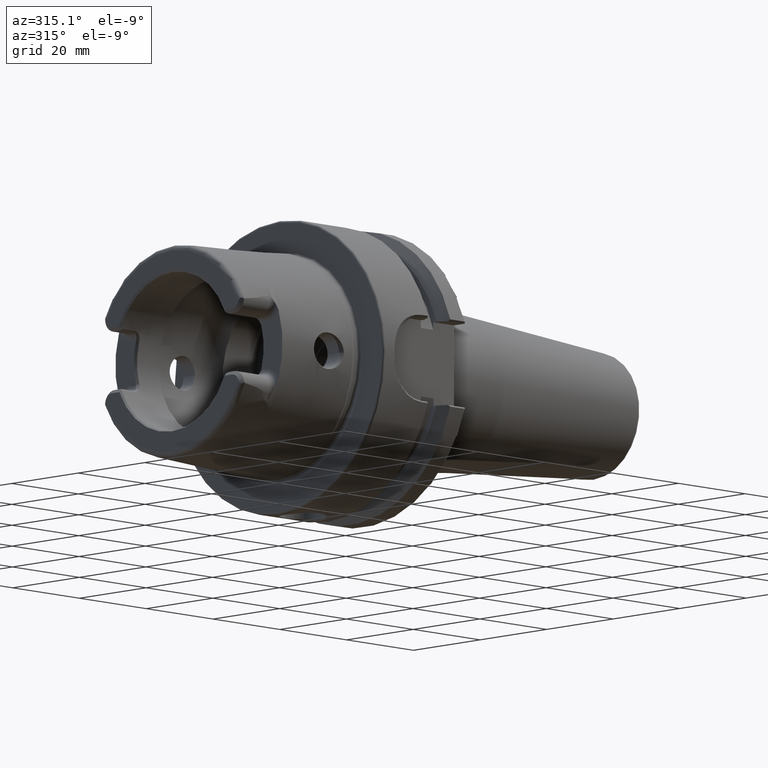
[diagram: clean part render]
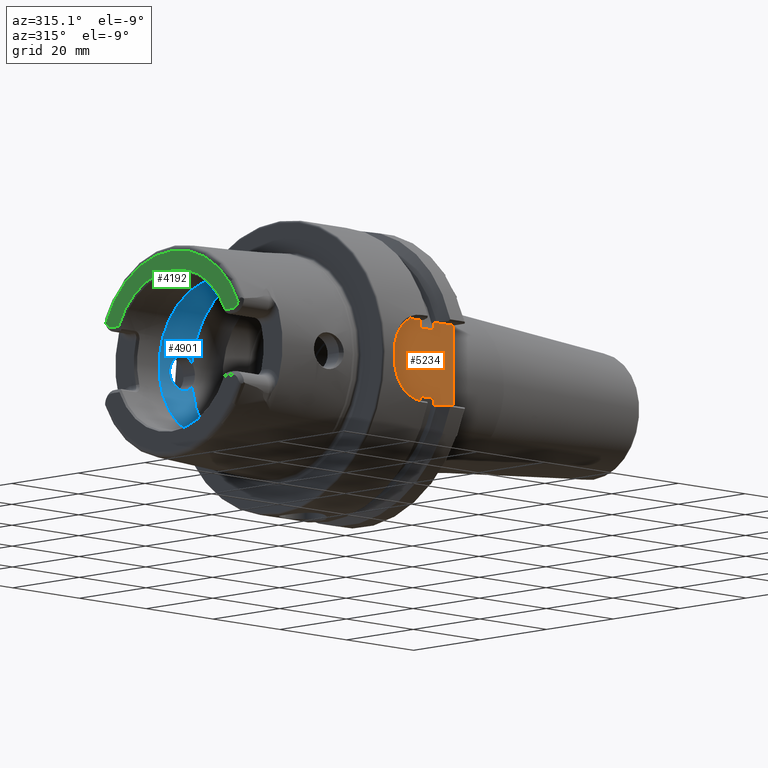
[diagram: same view with three faces highlighted in distinct colors, each labeled with its STEP entity id]
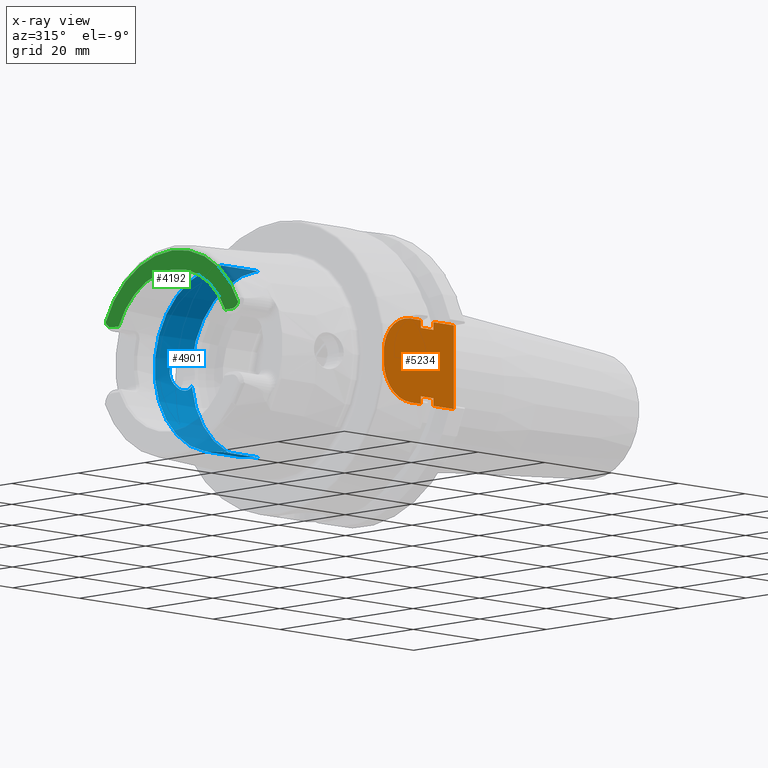
[diagram: x-ray of the same camera — body ghosted, the three highlighted faces saturated]
A machine part, auxiliary view with three faces highlighted in distinct colors.
The next image is the same camera in x-ray (body ghosted, the three faces saturated) — at least one of them is partly hidden behind the body in this view.
Their STEP definitions:

[orange] entity #5234 — the highlighted planar face has unit normal (0, 1, 0).
#626=DIRECTION('',(0.E0,0.E0,1.E0));
#627=VECTOR('',#626,1.8E1);
#628=CARTESIAN_POINT('',(2.6E1,-2.65E1,-9.E0));
#629=LINE('',#628,#627);
#1990=DIRECTION('',(0.E0,0.E0,1.E0));
#1991=VECTOR('',#1990,1.651530771650E0);
#1992=CARTESIAN_POINT('',(1.6125E1,-2.65E1,-9.E0));
#1993=LINE('',#1992,#1991);
#2022=DIRECTION('',(0.E0,0.E0,1.E0));
#2023=VECTOR('',#2022,1.651530771650E0);
#2024=CARTESIAN_POINT('',(1.6125E1,-2.65E1,7.348469228350E0));
#2025=LINE('',#2024,#2023);
#2030=CARTESIAN_POINT('',(1.3E1,-2.65E1,1.E0));
#2031=DIRECTION('',(0.E0,-1.E0,0.E0));
#2032=DIRECTION('',(0.E0,0.E0,1.E0));
#2033=AXIS2_PLACEMENT_3D('',#2030,#2031,#2032);
#2035=DIRECTION('',(1.E0,0.E0,0.E0));
#2036=VECTOR('',#2035,3.125E0);
#2037=CARTESIAN_POINT('',(1.3E1,-2.65E1,9.E0));
#2038=LINE('',#2037,#2036);
#2039=DIRECTION('',(1.E0,0.E0,0.E0));
#2040=VECTOR('',#2039,6.125E0);
#2041=CARTESIAN_POINT('',(1.9875E1,-2.65E1,9.E0));
#2042=LINE('',#2041,#2040);
#2043=DIRECTION('',(-1.E0,0.E0,0.E0));
#2044=VECTOR('',#2043,6.125E0);
#2045=CARTESIAN_POINT('',(2.6E1,-2.65E1,-9.E0));
#2046=LINE('',#2045,#2044);
#2047=DIRECTION('',(-1.E0,0.E0,0.E0));
#2048=VECTOR('',#2047,3.125E0);
#2049=CARTESIAN_POINT('',(1.6125E1,-2.65E1,-9.E0));
#2050=LINE('',#2049,#2048);
#2051=CARTESIAN_POINT('',(1.3E1,-2.65E1,-1.E0));
#2052=DIRECTION('',(0.E0,-1.E0,0.E0));
#2053=DIRECTION('',(-1.E0,0.E0,0.E0));
#2054=AXIS2_PLACEMENT_3D('',#2051,#2052,#2053);
#2056=DIRECTION('',(0.E0,0.E0,1.E0));
#2057=VECTOR('',#2056,2.E0);
#2058=CARTESIAN_POINT('',(5.E0,-2.65E1,-1.E0));
#2059=LINE('',#2058,#2057);
#2219=DIRECTION('',(0.E0,0.E0,1.E0));
#2220=VECTOR('',#2219,1.651530771650E0);
#2221=CARTESIAN_POINT('',(1.9875E1,-2.65E1,-9.E0));
#2222=LINE('',#2221,#2220);
#2243=DIRECTION('',(0.E0,0.E0,1.E0));
#2244=VECTOR('',#2243,1.651530771650E0);
#2245=CARTESIAN_POINT('',(1.9875E1,-2.65E1,7.348469228350E0));
#2246=LINE('',#2245,#2244);
#2377=DIRECTION('',(1.E0,0.E0,0.E0));
#2378=VECTOR('',#2377,3.75E0);
#2379=CARTESIAN_POINT('',(1.6125E1,-2.65E1,7.348469228350E0));
#2380=LINE('',#2379,#2378);
#2395=DIRECTION('',(1.E0,0.E0,0.E0));
#2396=VECTOR('',#2395,3.75E0);
#2397=CARTESIAN_POINT('',(1.6125E1,-2.65E1,-7.348469228350E0));
#2398=LINE('',#2397,#2396);
#2625=CARTESIAN_POINT('',(2.6E1,-2.65E1,-9.E0));
#2626=CARTESIAN_POINT('',(2.6E1,-2.65E1,9.E0));
#2627=VERTEX_POINT('',#2625);
#2628=VERTEX_POINT('',#2626);
#2629=CARTESIAN_POINT('',(1.6125E1,-2.65E1,-9.E0));
#2630=CARTESIAN_POINT('',(1.6125E1,-2.65E1,-7.348469228350E0));
#2631=VERTEX_POINT('',#2629);
#2632=VERTEX_POINT('',#2630);
#2633=CARTESIAN_POINT('',(1.6125E1,-2.65E1,7.348469228350E0));
#2634=CARTESIAN_POINT('',(1.6125E1,-2.65E1,9.E0));
#2635=VERTEX_POINT('',#2633);
#2636=VERTEX_POINT('',#2634);
#2641=CARTESIAN_POINT('',(1.9875E1,-2.65E1,7.348469228350E0));
#2642=VERTEX_POINT('',#2641);
#2643=CARTESIAN_POINT('',(1.9875E1,-2.65E1,-7.348469228350E0));
#2644=VERTEX_POINT('',#2643);
#2645=CARTESIAN_POINT('',(1.9875E1,-2.65E1,-9.E0));
#2646=VERTEX_POINT('',#2645);
#2647=CARTESIAN_POINT('',(1.9875E1,-2.65E1,9.E0));
#2648=VERTEX_POINT('',#2647);
#2653=CARTESIAN_POINT('',(1.3E1,-2.65E1,9.E0));
#2654=CARTESIAN_POINT('',(5.E0,-2.65E1,1.E0));
#2655=VERTEX_POINT('',#2653);
#2656=VERTEX_POINT('',#2654);
#2657=CARTESIAN_POINT('',(5.E0,-2.65E1,-1.E0));
#2658=CARTESIAN_POINT('',(1.3E1,-2.65E1,-9.E0));
#2659=VERTEX_POINT('',#2657);
#2660=VERTEX_POINT('',#2658);
#5204=CARTESIAN_POINT('',(0.E0,-2.65E1,0.E0));
#5205=DIRECTION('',(0.E0,1.E0,0.E0));
#5206=DIRECTION('',(-1.E0,0.E0,0.E0));
#5207=AXIS2_PLACEMENT_3D('',#5204,#5205,#5206);
#5208=PLANE('',#5207);
#5210=ORIENTED_EDGE('',*,*,#5209,.F.);
#5211=ORIENTED_EDGE('',*,*,#5137,.T.);
#5212=ORIENTED_EDGE('',*,*,#5197,.F.);
#5214=ORIENTED_EDGE('',*,*,#5213,.T.);
#5216=ORIENTED_EDGE('',*,*,#5215,.T.);
#5217=ORIENTED_EDGE('',*,*,#5152,.T.);
#5218=ORIENTED_EDGE('',*,*,#3742,.F.);
#5220=ORIENTED_EDGE('',*,*,#5219,.T.);
#5222=ORIENTED_EDGE('',*,*,#5221,.T.);
#5224=ORIENTED_EDGE('',*,*,#5223,.F.);
#5225=ORIENTED_EDGE('',*,*,#5167,.F.);
#5227=ORIENTED_EDGE('',*,*,#5226,.T.);
#5229=ORIENTED_EDGE('',*,*,#5228,.F.);
#5231=ORIENTED_EDGE('',*,*,#5230,.T.);
#5232=EDGE_LOOP('',(#5210,#5211,#5212,#5214,#5216,#5217,#5218,#5220,#5222,#5224,
#5225,#5227,#5229,#5231));
#5233=FACE_OUTER_BOUND('',#5232,.F.);
#5234=ADVANCED_FACE('',(#5233),#5208,.F.);
#2034=CIRCLE('',#2033,8.E0);
#2055=CIRCLE('',#2054,8.E0);
#3742=EDGE_CURVE('',#2627,#2628,#629,.T.);
#5137=EDGE_CURVE('',#2655,#2636,#2038,.T.);
#5152=EDGE_CURVE('',#2648,#2628,#2042,.T.);
#5167=EDGE_CURVE('',#2631,#2632,#1993,.T.);
#5197=EDGE_CURVE('',#2635,#2636,#2025,.T.);
#5209=EDGE_CURVE('',#2655,#2656,#2034,.T.);
#5213=EDGE_CURVE('',#2635,#2642,#2380,.T.);
#5215=EDGE_CURVE('',#2642,#2648,#2246,.T.);
#5219=EDGE_CURVE('',#2627,#2646,#2046,.T.);
#5221=EDGE_CURVE('',#2646,#2644,#2222,.T.);
#5223=EDGE_CURVE('',#2632,#2644,#2398,.T.);
#5226=EDGE_CURVE('',#2631,#2660,#2050,.T.);
#5228=EDGE_CURVE('',#2659,#2660,#2055,.T.);
#5230=EDGE_CURVE('',#2659,#2656,#2059,.T.);

[blue] entity #4901 — the highlighted cylindrical surface (partial cylindrical patch) has radius 20 mm, axis along (1, 0, 0).
#1689=CARTESIAN_POINT('',(-6.25E0,1.983683432405E1,-2.549509756796E0));
#1690=CARTESIAN_POINT('',(-6.412053249105E0,1.981436872154E1,
-2.724306669752E0));
#1691=CARTESIAN_POINT('',(-6.766283038869E0,1.976880152585E1,
-3.043174584824E0));
#1692=CARTESIAN_POINT('',(-7.437021749638E0,1.970321634602E1,
-3.437832059909E0));
#1693=CARTESIAN_POINT('',(-8.152676684205E0,1.965899391744E1,
-3.678552226110E0));
#1694=CARTESIAN_POINT('',(-8.900887994509E0,1.964074836162E1,
-3.773595275991E0));
#1695=CARTESIAN_POINT('',(-9.647982002938E0,1.965127008206E1,
-3.719177177138E0));
#1696=CARTESIAN_POINT('',(-1.038040066941E1,1.968954201551E1,
-3.513815501315E0));
#1697=CARTESIAN_POINT('',(-1.104729243051E1,1.974836703805E1,
-3.171513422847E0));
#1698=CARTESIAN_POINT('',(-1.163726074685E1,1.981912729168E1,
-2.701011039733E0));
#1699=CARTESIAN_POINT('',(-1.211813851842E1,1.988977616026E1,
-2.127402050047E0));
#1700=CARTESIAN_POINT('',(-1.247854943360E1,1.995021036686E1,
-1.467027006737E0));
#1701=CARTESIAN_POINT('',(-1.270027737553E1,1.999058859895E1,
-7.456987717207E-1));
#1702=CARTESIAN_POINT('',(-1.275E1,1.99999999E1,-2.521013685529E-1));
#1703=CARTESIAN_POINT('',(-1.275E1,1.99999999E1,0.E0));
#1705=CARTESIAN_POINT('',(-6.25E0,0.E0,0.E0));
#1706=DIRECTION('',(1.E0,0.E0,0.E0));
#1707=DIRECTION('',(0.E0,0.E0,-1.E0));
#1708=AXIS2_PLACEMENT_3D('',#1705,#1706,#1707);
#1710=CARTESIAN_POINT('',(-6.25E0,0.E0,0.E0));
#1711=DIRECTION('',(1.E0,0.E0,0.E0));
#1712=DIRECTION('',(0.E0,9.918417211620E-1,1.274754884772E-1));
#1713=AXIS2_PLACEMENT_3D('',#1710,#1711,#1712);
#1715=CARTESIAN_POINT('',(-1.275E1,1.99999999E1,0.E0));
#1716=CARTESIAN_POINT('',(-1.275E1,1.99999999E1,2.522499085260E-1));
#1717=CARTESIAN_POINT('',(-1.270021633428E1,1.999057683853E1,
7.460576467196E-1));
#1718=CARTESIAN_POINT('',(-1.247839689009E1,1.995018418162E1,1.467360516411E0));
#1719=CARTESIAN_POINT('',(-1.211800725292E1,1.988975364888E1,2.127612236E0));
#1720=CARTESIAN_POINT('',(-1.163703767481E1,1.981910322290E1,2.701157287313E0));
#1721=CARTESIAN_POINT('',(-1.104809586369E1,1.974845673600E1,3.170933053688E0));
#1722=CARTESIAN_POINT('',(-1.038170311499E1,1.968964959960E1,3.513217405331E0));
#1723=CARTESIAN_POINT('',(-9.650936081239E0,1.965137398590E1,3.718629939811E0));
#1724=CARTESIAN_POINT('',(-8.903475487327E0,1.964074202939E1,3.773631892091E0));
#1725=CARTESIAN_POINT('',(-8.157184233515E0,1.965882665966E1,3.679417749825E0));
#1726=CARTESIAN_POINT('',(-7.442004779313E0,1.970279837136E1,3.440215689278E0));
#1727=CARTESIAN_POINT('',(-6.767922365933E0,1.976858507722E1,3.044642999749E0));
#1728=CARTESIAN_POINT('',(-6.412615640680E0,1.981429075664E1,2.724913287093E0));
#1729=CARTESIAN_POINT('',(-6.25E0,1.983683432405E1,2.549509756796E0));
#1768=DIRECTION('',(-1.E0,0.E0,0.E0));
#1769=VECTOR('',#1768,1.101397465395E1);
#1770=CARTESIAN_POINT('',(-6.25E0,0.E0,1.99999999E1));
#1771=LINE('',#1770,#1769);
#1772=DIRECTION('',(-1.E0,0.E0,0.E0));
#1773=VECTOR('',#1772,1.101397465395E1);
#1774=CARTESIAN_POINT('',(-6.25E0,0.E0,-1.99999999E1));
#1775=LINE('',#1774,#1773);
#1820=CARTESIAN_POINT('',(-1.726397465395E1,0.E0,0.E0));
#1821=DIRECTION('',(1.E0,0.E0,0.E0));
#1822=DIRECTION('',(0.E0,0.E0,-1.E0));
#1823=AXIS2_PLACEMENT_3D('',#1820,#1821,#1822);
#2533=CARTESIAN_POINT('',(-1.726397465395E1,0.E0,-1.99999999E1));
#2534=CARTESIAN_POINT('',(-1.726397465395E1,0.E0,1.99999999E1));
#2535=VERTEX_POINT('',#2533);
#2536=VERTEX_POINT('',#2534);
#2545=CARTESIAN_POINT('',(-6.25E0,0.E0,-1.99999999E1));
#2546=VERTEX_POINT('',#2545);
#2547=CARTESIAN_POINT('',(-6.25E0,0.E0,1.99999999E1));
#2548=VERTEX_POINT('',#2547);
#2836=VERTEX_POINT('',#1689);
#2837=VERTEX_POINT('',#1703);
#2838=VERTEX_POINT('',#1729);
#4884=CARTESIAN_POINT('',(0.E0,0.E0,0.E0));
#4885=DIRECTION('',(1.E0,0.E0,0.E0));
#4886=DIRECTION('',(0.E0,0.E0,1.E0));
#4887=AXIS2_PLACEMENT_3D('',#4884,#4885,#4886);
#4888=CYLINDRICAL_SURFACE('',#4887,1.99999999E1);
#4889=ORIENTED_EDGE('',*,*,#4844,.F.);
#4890=ORIENTED_EDGE('',*,*,#4879,.F.);
#4892=ORIENTED_EDGE('',*,*,#4891,.T.);
#4894=ORIENTED_EDGE('',*,*,#4893,.T.);
#4896=ORIENTED_EDGE('',*,*,#4895,.F.);
#4897=ORIENTED_EDGE('',*,*,#4872,.F.);
#4898=ORIENTED_EDGE('',*,*,#4782,.F.);
#4899=EDGE_LOOP('',(#4889,#4890,#4892,#4894,#4896,#4897,#4898));
#4900=FACE_OUTER_BOUND('',#4899,.F.);
#4901=ADVANCED_FACE('',(#4900),#4888,.F.);
#1704=B_SPLINE_CURVE_WITH_KNOTS('',3,(#1689,#1690,#1691,#1692,#1693,#1694,#1695,
#1696,#1697,#1698,#1699,#1700,#1701,#1702,#1703),.UNSPECIFIED.,.F.,.F.,(4,1,1,1,
1,1,1,1,1,1,1,1,4),(0.E0,8.333333333333E-2,1.666666666667E-1,2.5E-1,
3.333333333333E-1,4.166666666667E-1,5.E-1,5.833333333333E-1,6.666666666667E-1,
7.5E-1,8.333333333333E-1,9.166666666667E-1,1.E0),.UNSPECIFIED.);
#1709=CIRCLE('',#1708,1.99999999E1);
#1714=CIRCLE('',#1713,1.99999999E1);
#1730=B_SPLINE_CURVE_WITH_KNOTS('',3,(#1715,#1716,#1717,#1718,#1719,#1720,#1721,
#1722,#1723,#1724,#1725,#1726,#1727,#1728,#1729),.UNSPECIFIED.,.F.,.F.,(4,1,1,1,
1,1,1,1,1,1,1,1,4),(0.E0,8.333333333333E-2,1.666666666667E-1,2.5E-1,
3.333333333333E-1,4.166666666667E-1,5.E-1,5.833333333333E-1,6.666666666667E-1,
7.5E-1,8.333333333333E-1,9.166666666667E-1,1.E0),.UNSPECIFIED.);
#1824=CIRCLE('',#1823,1.99999999E1);
#4782=EDGE_CURVE('',#2837,#2838,#1730,.T.);
#4844=EDGE_CURVE('',#2836,#2837,#1704,.T.);
#4872=EDGE_CURVE('',#2838,#2548,#1714,.T.);
#4879=EDGE_CURVE('',#2546,#2836,#1709,.T.);
#4891=EDGE_CURVE('',#2546,#2535,#1775,.T.);
#4893=EDGE_CURVE('',#2535,#2536,#1824,.T.);
#4895=EDGE_CURVE('',#2548,#2536,#1771,.T.);

[green] entity #4192 — the highlighted planar face has unit normal (1, 0, 0).
#1214=DIRECTION('',(0.E0,1.E0,0.E0));
#1215=VECTOR('',#1214,1.981717768605E0);
#1216=CARTESIAN_POINT('',(-3.2E1,1.600828223140E1,7.07E0));
#1217=LINE('',#1216,#1215);
#1218=CARTESIAN_POINT('',(-3.2E1,1.799E1,9.15E0));
#1219=DIRECTION('',(1.E0,0.E0,0.E0));
#1220=DIRECTION('',(0.E0,0.E0,-1.E0));
#1221=AXIS2_PLACEMENT_3D('',#1218,#1219,#1220);
#1223=CARTESIAN_POINT('',(-3.2E1,-1.799E1,9.15E0));
#1224=DIRECTION('',(-1.E0,0.E0,0.E0));
#1225=DIRECTION('',(0.E0,0.E0,-1.E0));
#1226=AXIS2_PLACEMENT_3D('',#1223,#1224,#1225);
#1228=DIRECTION('',(0.E0,-1.E0,0.E0));
#1229=VECTOR('',#1228,1.981717768605E0);
#1230=CARTESIAN_POINT('',(-3.2E1,-1.600828223140E1,7.07E0));
#1231=LINE('',#1230,#1229);
#1355=CARTESIAN_POINT('',(-3.2E1,0.E0,0.E0));
#1356=DIRECTION('',(-1.E0,0.E0,0.E0));
#1357=DIRECTION('',(0.E0,-9.224287428258E-1,3.861673399044E-1));
#1358=AXIS2_PLACEMENT_3D('',#1355,#1356,#1357);
#1590=CARTESIAN_POINT('',(-3.2E1,0.E0,-7.105427357601E-14));
#1591=DIRECTION('',(1.E0,0.E0,0.E0));
#1592=DIRECTION('',(0.E0,9.147589846511E-1,4.04E-1));
#1593=AXIS2_PLACEMENT_3D('',#1590,#1591,#1592);
#2768=CARTESIAN_POINT('',(-3.2E1,-1.600828223140E1,7.07E0));
#2769=CARTESIAN_POINT('',(-3.2E1,-1.799E1,7.07E0));
#2770=VERTEX_POINT('',#2768);
#2771=VERTEX_POINT('',#2769);
#2772=CARTESIAN_POINT('',(-3.2E1,-1.990238974402E1,8.331974653830E0));
#2773=VERTEX_POINT('',#2772);
#2797=CARTESIAN_POINT('',(-3.2E1,1.799E1,7.07E0));
#2799=VERTEX_POINT('',#2797);
#2804=CARTESIAN_POINT('',(-3.2E1,1.600828223140E1,7.07E0));
#2805=VERTEX_POINT('',#2804);
#2806=CARTESIAN_POINT('',(-3.2E1,1.990238974402E1,8.331974653830E0));
#2807=VERTEX_POINT('',#2806);
#4173=CARTESIAN_POINT('',(-3.2E1,0.E0,0.E0));
#4174=DIRECTION('',(1.E0,0.E0,0.E0));
#4175=DIRECTION('',(0.E0,0.E0,1.E0));
#4176=AXIS2_PLACEMENT_3D('',#4173,#4174,#4175);
#4177=PLANE('',#4176);
#4179=ORIENTED_EDGE('',*,*,#4178,.T.);
#4181=ORIENTED_EDGE('',*,*,#4180,.T.);
#4183=ORIENTED_EDGE('',*,*,#4182,.F.);
#4185=ORIENTED_EDGE('',*,*,#4184,.F.);
#4187=ORIENTED_EDGE('',*,*,#4186,.F.);
#4189=ORIENTED_EDGE('',*,*,#4188,.F.);
#4190=EDGE_LOOP('',(#4179,#4181,#4183,#4185,#4187,#4189));
#4191=FACE_OUTER_BOUND('',#4190,.F.);
#4192=ADVANCED_FACE('',(#4191),#4177,.F.);
#1222=CIRCLE('',#1221,2.08E0);
#1227=CIRCLE('',#1226,2.08E0);
#1359=CIRCLE('',#1358,2.157607283902E1);
#1594=CIRCLE('',#1593,1.75E1);
#4178=EDGE_CURVE('',#2805,#2799,#1217,.T.);
#4180=EDGE_CURVE('',#2799,#2807,#1222,.T.);
#4182=EDGE_CURVE('',#2773,#2807,#1359,.T.);
#4184=EDGE_CURVE('',#2771,#2773,#1227,.T.);
#4186=EDGE_CURVE('',#2770,#2771,#1231,.T.);
#4188=EDGE_CURVE('',#2805,#2770,#1594,.T.);